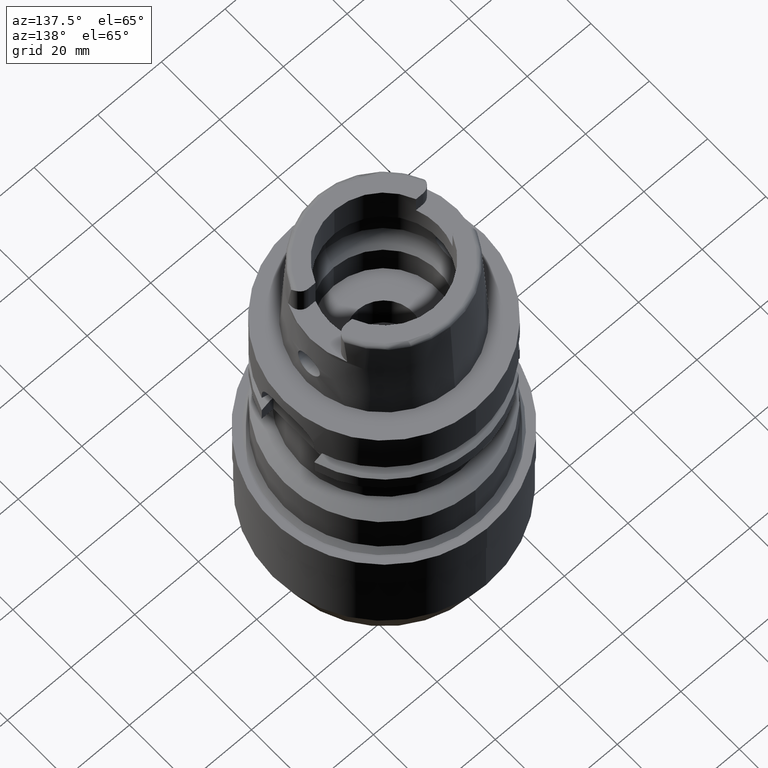
[diagram: clean part render]
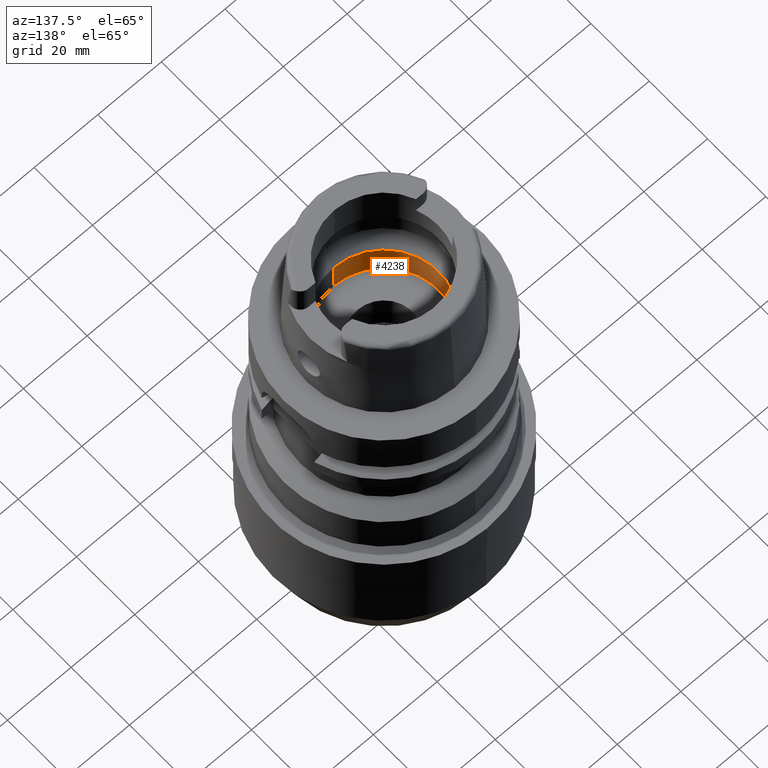
[diagram: same view with one face highlighted and labeled with its STEP entity id]
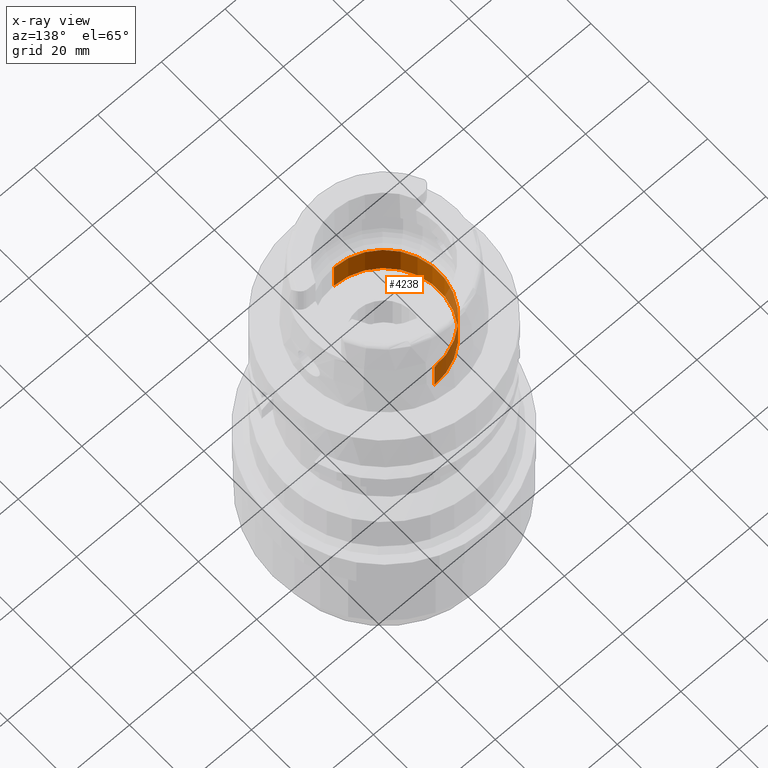
[diagram: x-ray of the same camera — body ghosted, the highlighted face saturated]
A machine part, auxiliary view. The second image highlights one B-rep face of the part: STEP entity #4238.
The next image is the same camera in x-ray: the body ghosted, the highlighted face saturated — about 19% of this face is hidden behind the body in this view.
In plain terms, the highlighted cylindrical surface (partial cylindrical patch) has radius 17.25 mm, axis along (0, 0, -1).
Its self-contained STEP definition (entity closure, byte-faithful):
#2046=CARTESIAN_POINT('',(0.E0,0.E0,-9.95E0));
#2047=DIRECTION('',(0.E0,0.E0,-1.E0));
#2048=DIRECTION('',(0.E0,-1.E0,0.E0));
#2049=AXIS2_PLACEMENT_3D('',#2046,#2047,#2048);
#2078=DIRECTION('',(0.E0,0.E0,1.E0));
#2079=VECTOR('',#2078,9.95E0);
#2080=CARTESIAN_POINT('',(0.E0,-1.725E1,-9.95E0));
#2081=LINE('',#2080,#2079);
#2085=CARTESIAN_POINT('',(0.E0,0.E0,7.815970093361E-14));
#2086=DIRECTION('',(0.E0,0.E0,-1.E0));
#2087=DIRECTION('',(0.E0,-1.E0,0.E0));
#2088=AXIS2_PLACEMENT_3D('',#2085,#2086,#2087);
#2093=DIRECTION('',(0.E0,0.E0,1.E0));
#2094=VECTOR('',#2093,9.95E0);
#2095=CARTESIAN_POINT('',(0.E0,1.725E1,-9.95E0));
#2096=LINE('',#2095,#2094);
#2504=CARTESIAN_POINT('',(0.E0,1.725E1,7.105427357601E-14));
#2505=VERTEX_POINT('',#2504);
#2506=CARTESIAN_POINT('',(0.E0,-1.725E1,7.815970093361E-14));
#2507=VERTEX_POINT('',#2506);
#2508=CARTESIAN_POINT('',(0.E0,1.725E1,-9.95E0));
#2509=VERTEX_POINT('',#2508);
#2510=CARTESIAN_POINT('',(0.E0,-1.725E1,-9.95E0));
#2511=VERTEX_POINT('',#2510);
#4224=CARTESIAN_POINT('',(0.E0,0.E0,3.885E1));
#4225=DIRECTION('',(0.E0,0.E0,-1.E0));
#4226=DIRECTION('',(0.E0,-1.E0,0.E0));
#4227=AXIS2_PLACEMENT_3D('',#4224,#4225,#4226);
#4228=CYLINDRICAL_SURFACE('',#4227,1.725E1);
#4230=ORIENTED_EDGE('',*,*,#4229,.F.);
#4231=ORIENTED_EDGE('',*,*,#4213,.F.);
#4233=ORIENTED_EDGE('',*,*,#4232,.T.);
#4235=ORIENTED_EDGE('',*,*,#4234,.T.);
#4236=EDGE_LOOP('',(#4230,#4231,#4233,#4235));
#4237=FACE_OUTER_BOUND('',#4236,.F.);
#2050=CIRCLE('',#2049,1.725E1);
#2089=CIRCLE('',#2088,1.725E1);
#4213=EDGE_CURVE('',#2511,#2509,#2050,.T.);
#4229=EDGE_CURVE('',#2509,#2505,#2096,.T.);
#4232=EDGE_CURVE('',#2511,#2507,#2081,.T.);
#4234=EDGE_CURVE('',#2507,#2505,#2089,.T.);
#4238=ADVANCED_FACE('',(#4237),#4228,.F.);